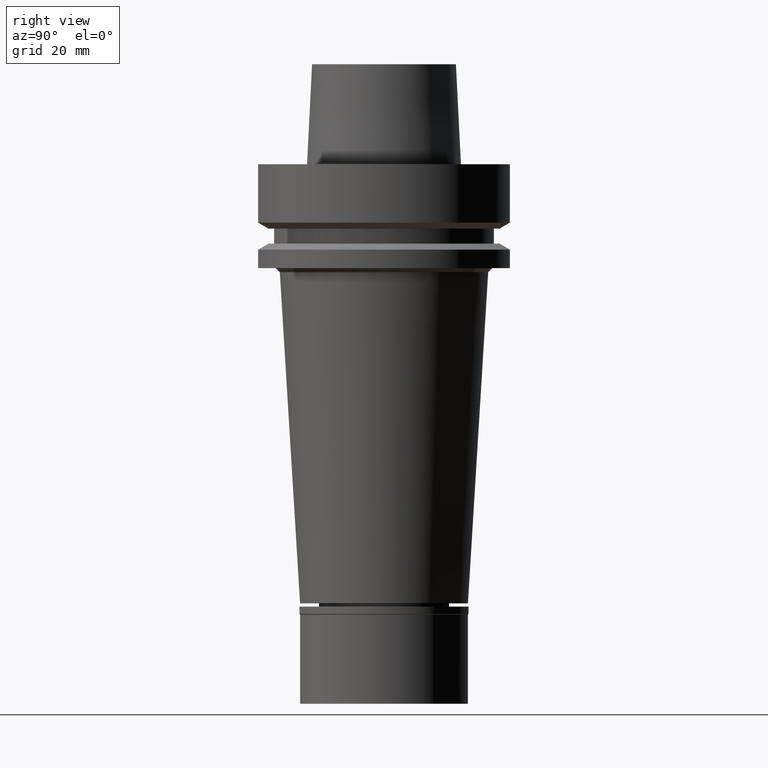
[diagram: clean part render]
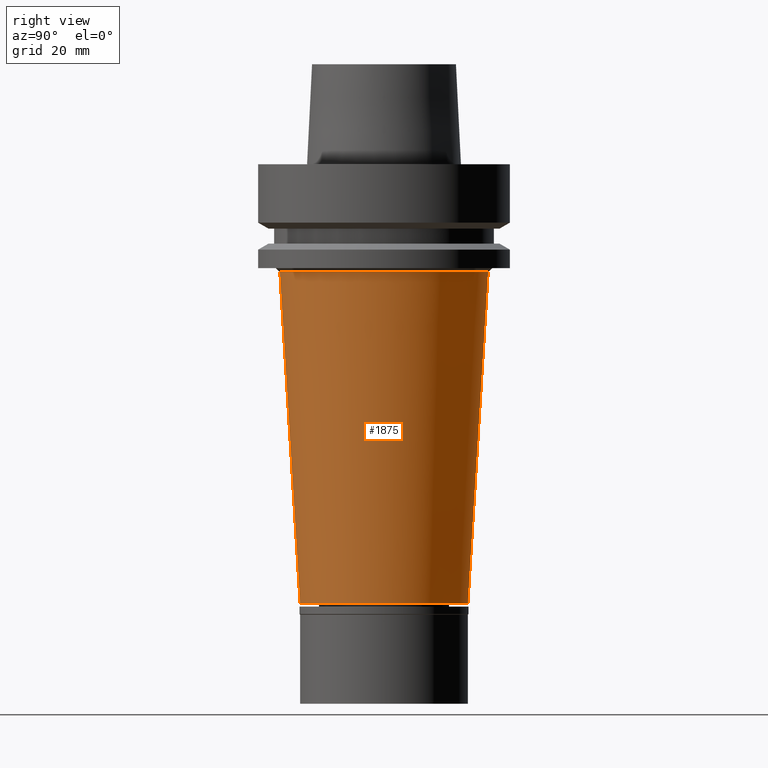
[diagram: same view with one face highlighted and labeled with its STEP entity id]
A machine part, right view. The second image highlights one B-rep face of the part: STEP entity #1875.
In plain terms, the highlighted conical surface has half-angle 3.5 deg.
Its self-contained STEP definition (entity closure, byte-faithful):
#8 = EDGE_CURVE ( 'NONE', #1132, #1531, #398, .T. ) ;
#53 = CIRCLE ( 'NONE', #386, 21.00000000000000000 ) ;
#91 = VERTEX_POINT ( 'NONE', #1564 ) ;
#163 = DIRECTION ( 'NONE',  ( 0.0000000000000000000, -1.000000000000000000, 0.0000000000000000000 ) ) ;
#210 = ORIENTED_EDGE ( 'NONE', *, *, #363, .T. ) ;
#327 = EDGE_CURVE ( 'NONE', #836, #91, #569, .T. ) ;
#329 = CARTESIAN_POINT ( 'NONE',  ( 0.0000000000000000000, -26.07038121047999724, -27.00000000000000000 ) ) ;
#354 = CARTESIAN_POINT ( 'NONE',  ( 0.0000000000000000000, -26.07038121047999724, -27.00000000000000000 ) ) ;
#363 = EDGE_CURVE ( 'NONE', #91, #1531, #53, .T. ) ;
#386 = AXIS2_PLACEMENT_3D ( 'NONE', #1476, #2150, #163 ) ;
#398 = LINE ( 'NONE', #1649, #1301 ) ;
#457 = EDGE_LOOP ( 'NONE', ( #1300, #2716, #210, #736 ) ) ;
#569 = LINE ( 'NONE', #329, #2549 ) ;
#661 = FACE_OUTER_BOUND ( 'NONE', #457, .T. ) ;
#736 = ORIENTED_EDGE ( 'NONE', *, *, #8, .F. ) ;
#810 = CARTESIAN_POINT ( 'NONE',  ( 0.0000000000000000000, 0.0000000000000000000, -27.00000000000000000 ) ) ;
#836 = VERTEX_POINT ( 'NONE', #354 ) ;
#1061 = DIRECTION ( 'NONE',  ( 0.0000000000000000000, 0.0000000000000000000, 1.000000000000000000 ) ) ;
#1132 = VERTEX_POINT ( 'NONE', #1135 ) ;
#1135 = CARTESIAN_POINT ( 'NONE',  ( 0.0000000000000000000, 26.07038121047999724, -27.00000000000000000 ) ) ;
#1291 = AXIS2_PLACEMENT_3D ( 'NONE', #1965, #1061, #2831 ) ;
#1300 = ORIENTED_EDGE ( 'NONE', *, *, #1871, .F. ) ;
#1301 = VECTOR ( 'NONE', #2546, 1000.000000000000114 ) ;
#1476 = CARTESIAN_POINT ( 'NONE',  ( 0.0000000000000000000, 0.0000000000000000000, -109.8999999999999915 ) ) ;
#1506 = DIRECTION ( 'NONE',  ( 0.0000000000000000000, 0.0000000000000000000, 1.000000000000000000 ) ) ;
#1531 = VERTEX_POINT ( 'NONE', #2764 ) ;
#1564 = CARTESIAN_POINT ( 'NONE',  ( 0.0000000000000000000, -21.00000000000000000, -109.8999999999999915 ) ) ;
#1649 = CARTESIAN_POINT ( 'NONE',  ( 0.0000000000000000000, 26.07038121047999724, -27.00000000000000000 ) ) ;
#1697 = CIRCLE ( 'NONE', #1886, 26.07038121047999724 ) ;
#1871 = EDGE_CURVE ( 'NONE', #836, #1132, #1697, .T. ) ;
#1875 = ADVANCED_FACE ( 'NONE', ( #661 ), #2641, .T. ) ;
#1886 = AXIS2_PLACEMENT_3D ( 'NONE', #810, #1506, #2164 ) ;
#1965 = CARTESIAN_POINT ( 'NONE',  ( 0.0000000000000000000, 0.0000000000000000000, -68.45000000000000284 ) ) ;
#2150 = DIRECTION ( 'NONE',  ( 0.0000000000000000000, 0.0000000000000000000, 1.000000000000000000 ) ) ;
#2164 = DIRECTION ( 'NONE',  ( 0.0000000000000000000, -1.000000000000000000, 0.0000000000000000000 ) ) ;
#2362 = DIRECTION ( 'NONE',  ( 0.0000000000000000000, 0.06104853953487787699, -0.9981347984218655878 ) ) ;
#2546 = DIRECTION ( 'NONE',  ( 0.0000000000000000000, -0.06104853953487787699, -0.9981347984218655878 ) ) ;
#2549 = VECTOR ( 'NONE', #2362, 1000.000000000000114 ) ;
#2641 = CONICAL_SURFACE ( 'NONE', #1291, 23.53519060523999684, 0.06108652381978962181 ) ;
#2716 = ORIENTED_EDGE ( 'NONE', *, *, #327, .T. ) ;
#2764 = CARTESIAN_POINT ( 'NONE',  ( 0.0000000000000000000, 21.00000000000000000, -109.8999999999999915 ) ) ;
#2831 = DIRECTION ( 'NONE',  ( 0.0000000000000000000, 1.000000000000000000, 0.0000000000000000000 ) ) ;